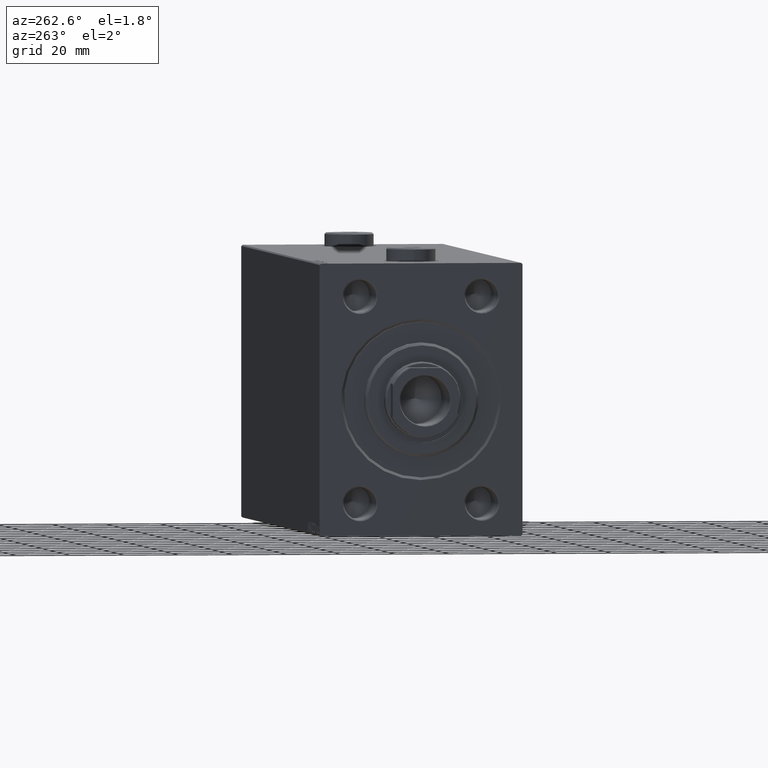
[diagram: clean part render]
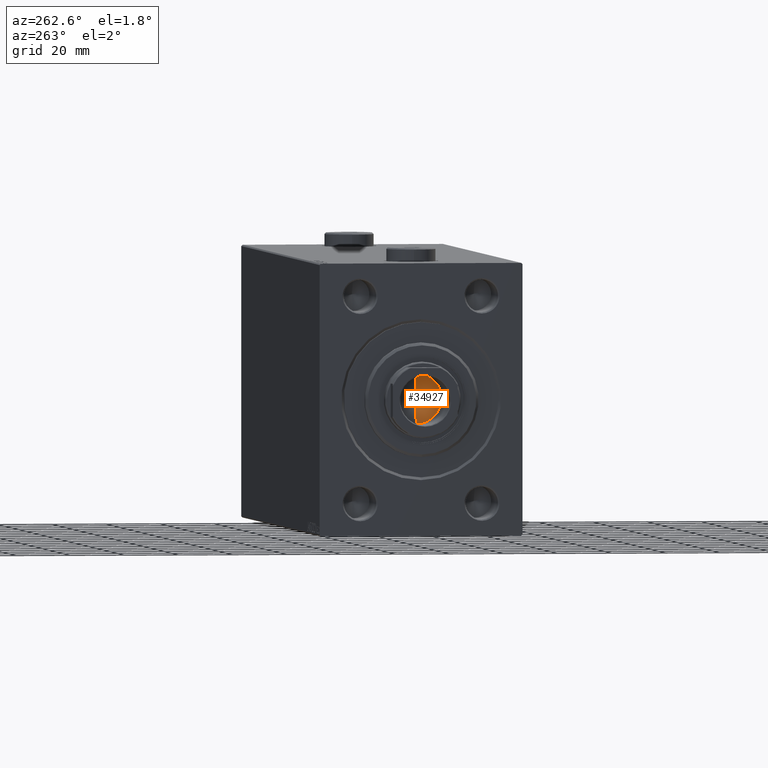
[diagram: same view with one face highlighted and labeled with its STEP entity id]
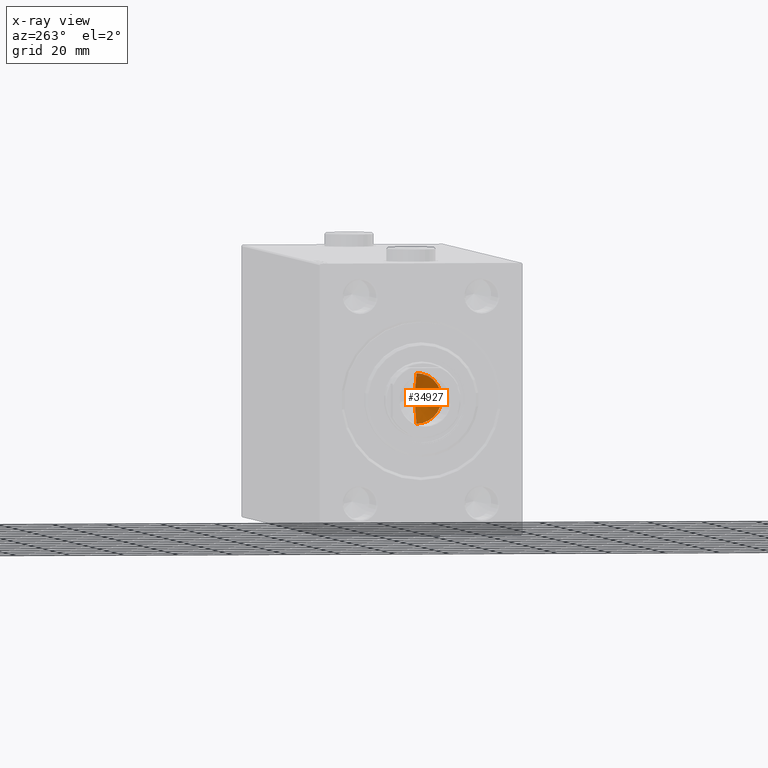
[diagram: x-ray of the same camera — body ghosted, the highlighted face saturated]
A machine part, auxiliary view. The second image highlights one B-rep face of the part: STEP entity #34927.
The next image is the same camera in x-ray: the body ghosted, the highlighted face saturated — about 0% of this face is hidden behind the body in this view.
In plain terms, the highlighted conical surface has half-angle 59 deg.
Its self-contained STEP definition (entity closure, byte-faithful):
#2569 = AXIS2_PLACEMENT_3D ( 'NONE', #19126, #36682, #26965 ) ;
#4929 = DIRECTION ( 'NONE',  ( 0.8571673007021113344, 0.000000000000000000, 0.5150380749100558209 ) ) ;
#7821 = ORIENTED_EDGE ( 'NONE', *, *, #24995, .F. ) ;
#11030 = CARTESIAN_POINT ( 'NONE',  ( 0.000000000000000000, 0.000000000000000000, 196.0000000000000284 ) ) ;
#13977 = VERTEX_POINT ( 'NONE', #17343 ) ;
#17343 = CARTESIAN_POINT ( 'NONE',  ( -6.793016015247754405E-15, 0.000000000000000000, 190.4420392739950785 ) ) ;
#19126 = CARTESIAN_POINT ( 'NONE',  ( 0.000000000000000000, 0.000000000000000000, 196.0000000000000284 ) ) ;
#19495 = LINE ( 'NONE', #23415, #41461 ) ;
#19756 = CARTESIAN_POINT ( 'NONE',  ( -9.249999999999994671, 1.132798289211300909E-15, 196.0000000000000284 ) ) ;
#21760 = CONICAL_SURFACE ( 'NONE', #2569, 9.249999999999994671, 1.029744258676652535 ) ;
#21927 = VECTOR ( 'NONE', #40784, 1000.000000000000000 ) ;
#22999 = VERTEX_POINT ( 'NONE', #37973 ) ;
#23415 = CARTESIAN_POINT ( 'NONE',  ( 9.249999999999994671, 0.000000000000000000, 196.0000000000000284 ) ) ;
#23900 = LINE ( 'NONE', #19756, #21927 ) ;
#24995 = EDGE_CURVE ( 'NONE', #13977, #32167, #19495, .T. ) ;
#25459 = EDGE_LOOP ( 'NONE', ( #7821, #37833, #26836 ) ) ;
#26836 = ORIENTED_EDGE ( 'NONE', *, *, #40296, .T. ) ;
#26965 = DIRECTION ( 'NONE',  ( 1.000000000000000000, 0.000000000000000000, 0.000000000000000000 ) ) ;
#28815 = DIRECTION ( 'NONE',  ( -0.000000000000000000, -0.000000000000000000, 1.000000000000000000 ) ) ;
#31440 = CIRCLE ( 'NONE', #44033, 9.249999999999994671 ) ;
#32167 = VERTEX_POINT ( 'NONE', #44857 ) ;
#34927 = ADVANCED_FACE ( 'NONE', ( #44289 ), #21760, .F. ) ;
#36682 = DIRECTION ( 'NONE',  ( -0.000000000000000000, -0.000000000000000000, 1.000000000000000000 ) ) ;
#37833 = ORIENTED_EDGE ( 'NONE', *, *, #41494, .T. ) ;
#37973 = CARTESIAN_POINT ( 'NONE',  ( -9.249999999999994671, 1.132798289211300909E-15, 196.0000000000000284 ) ) ;
#40296 = EDGE_CURVE ( 'NONE', #22999, #32167, #31440, .T. ) ;
#40784 = DIRECTION ( 'NONE',  ( -0.8571673007021113344, 1.049727191138617463E-16, 0.5150380749100558209 ) ) ;
#41461 = VECTOR ( 'NONE', #4929, 1000.000000000000000 ) ;
#41494 = EDGE_CURVE ( 'NONE', #13977, #22999, #23900, .T. ) ;
#42693 = DIRECTION ( 'NONE',  ( 1.000000000000000000, 0.000000000000000000, 0.000000000000000000 ) ) ;
#44033 = AXIS2_PLACEMENT_3D ( 'NONE', #11030, #28815, #42693 ) ;
#44289 = FACE_OUTER_BOUND ( 'NONE', #25459, .T. ) ;
#44857 = CARTESIAN_POINT ( 'NONE',  ( 9.249999999999994671, 0.000000000000000000, 196.0000000000000284 ) ) ;